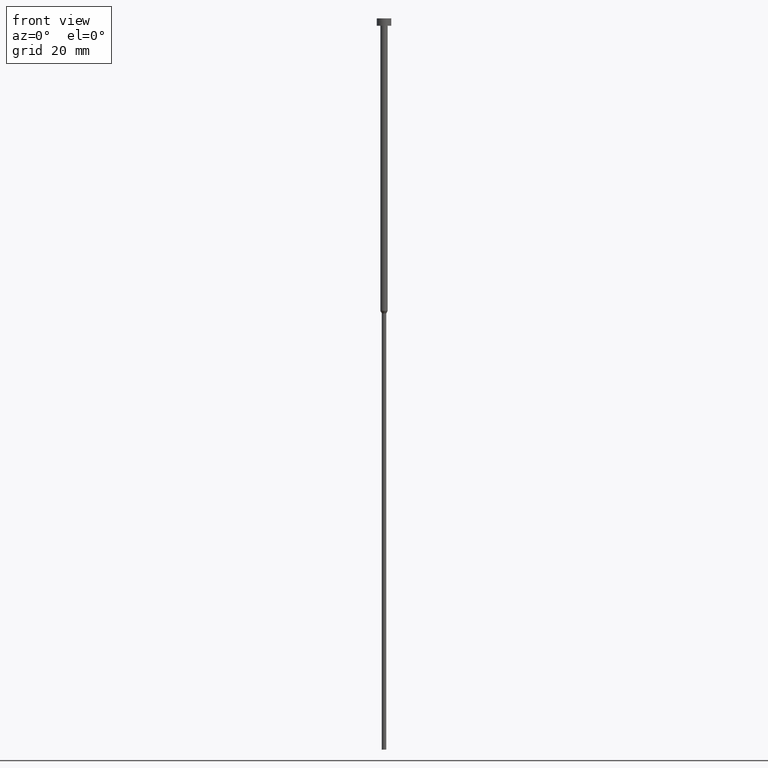
[diagram: clean part render]
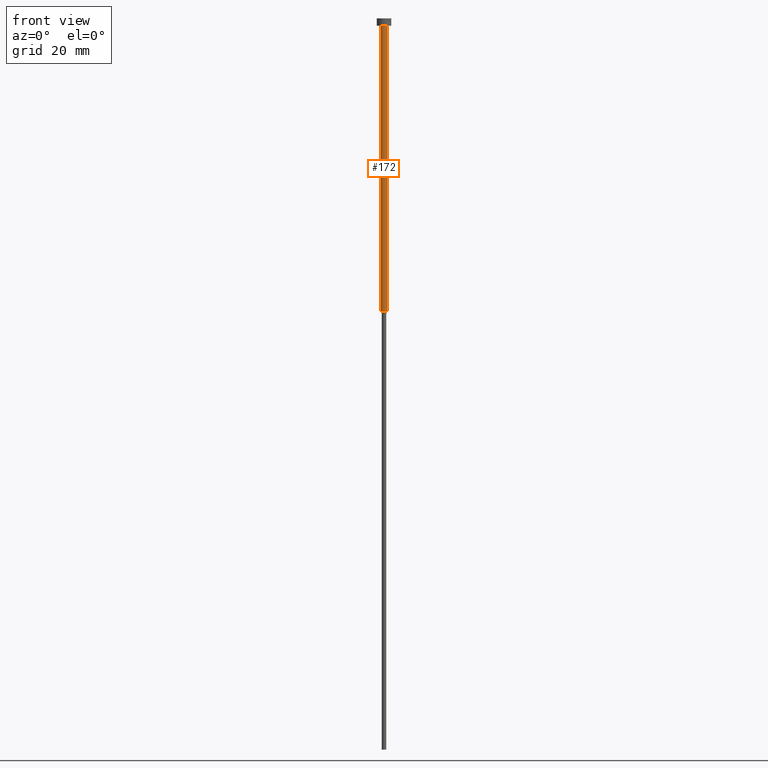
[diagram: same view with one face highlighted and labeled with its STEP entity id]
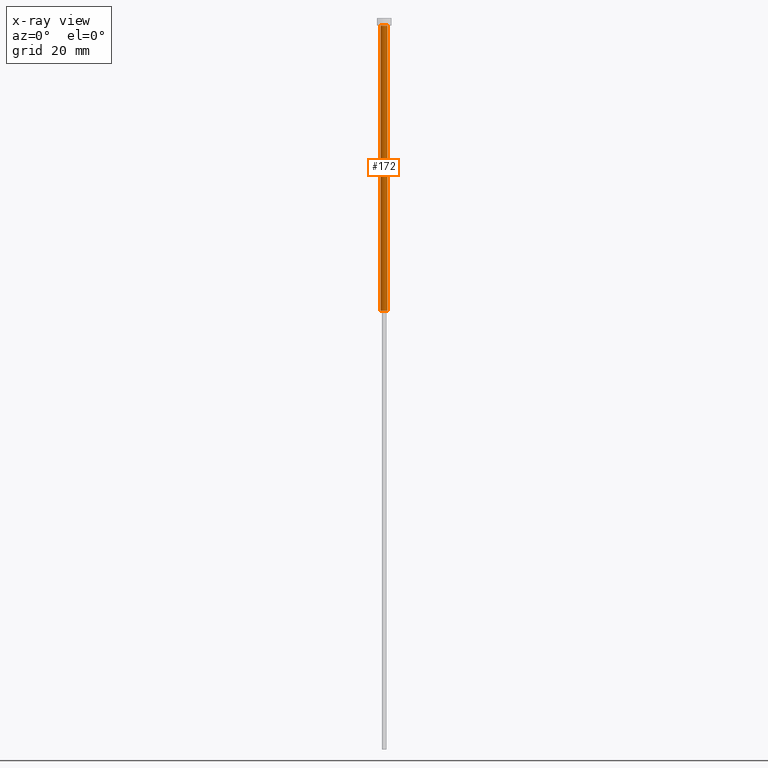
[diagram: x-ray of the same camera — body ghosted, the highlighted face saturated]
A machine part, front view. The second image highlights one B-rep face of the part: STEP entity #172.
The next image is the same camera in x-ray: the body ghosted, the highlighted face saturated — about 0% of this face is hidden behind the body in this view.
In plain terms, the highlighted cylindrical surface (edge-blend (fillet) strip) has radius 1 mm, axis along (-0, -0, 1).
Its self-contained STEP definition (entity closure, byte-faithful):
#6 = ORIENTED_EDGE ( 'NONE', *, *, #77, .T. ) ;
#10 = DIRECTION ( 'NONE',  ( -0.000000000000000000, -0.000000000000000000, 1.000000000000000000 ) ) ;
#20 = CARTESIAN_POINT ( 'NONE',  ( 1.000000000000003109, 0.000000000000000000, -80.00000000000000000 ) ) ;
#25 = DIRECTION ( 'NONE',  ( -0.000000000000000000, -0.000000000000000000, 1.000000000000000000 ) ) ;
#29 = CARTESIAN_POINT ( 'NONE',  ( 0.000000000000000000, 0.000000000000000000, -80.00000000000000000 ) ) ;
#30 = AXIS2_PLACEMENT_3D ( 'NONE', #29, #10, #227 ) ;
#43 = VERTEX_POINT ( 'NONE', #134 ) ;
#48 = DIRECTION ( 'NONE',  ( 1.000000000000000000, 0.000000000000000000, 0.000000000000000000 ) ) ;
#77 = EDGE_CURVE ( 'NONE', #205, #315, #166, .T. ) ;
#79 = FACE_OUTER_BOUND ( 'NONE', #148, .T. ) ;
#93 = CIRCLE ( 'NONE', #30, 1.000000000000003109 ) ;
#103 = CARTESIAN_POINT ( 'NONE',  ( 0.000000000000000000, 0.000000000000000000, -2.000000000000000444 ) ) ;
#105 = CARTESIAN_POINT ( 'NONE',  ( 1.000000000000003331, 0.000000000000000000, 0.000000000000000000 ) ) ;
#108 = EDGE_CURVE ( 'NONE', #43, #315, #219, .T. ) ;
#134 = CARTESIAN_POINT ( 'NONE',  ( -1.000000000000003553, 1.224646799147357398E-16, -2.000000000000000444 ) ) ;
#136 = DIRECTION ( 'NONE',  ( 1.000000000000000000, 0.000000000000000000, 0.000000000000000000 ) ) ;
#144 = CARTESIAN_POINT ( 'NONE',  ( 1.000000000000003553, 0.000000000000000000, -2.000000000000000444 ) ) ;
#148 = EDGE_LOOP ( 'NONE', ( #281, #263, #6, #339 ) ) ;
#156 = EDGE_CURVE ( 'NONE', #318, #43, #190, .T. ) ;
#163 = CARTESIAN_POINT ( 'NONE',  ( -1.000000000000003331, 1.224646799147357151E-16, 0.000000000000000000 ) ) ;
#165 = CYLINDRICAL_SURFACE ( 'NONE', #338, 1.000000000000003331 ) ;
#166 = LINE ( 'NONE', #105, #279 ) ;
#172 = ADVANCED_FACE ( 'NONE', ( #79 ), #165, .T. ) ;
#190 = LINE ( 'NONE', #163, #202 ) ;
#202 = VECTOR ( 'NONE', #291, 1000.000000000000000 ) ;
#205 = VERTEX_POINT ( 'NONE', #20 ) ;
#219 = CIRCLE ( 'NONE', #241, 1.000000000000003553 ) ;
#221 = EDGE_CURVE ( 'NONE', #318, #205, #93, .T. ) ;
#227 = DIRECTION ( 'NONE',  ( 1.000000000000000000, 0.000000000000000000, 0.000000000000000000 ) ) ;
#241 = AXIS2_PLACEMENT_3D ( 'NONE', #103, #323, #48 ) ;
#244 = DIRECTION ( 'NONE',  ( -0.000000000000000000, -0.000000000000000000, 1.000000000000000000 ) ) ;
#255 = CARTESIAN_POINT ( 'NONE',  ( -1.000000000000003109, 1.224646799147356905E-16, -80.00000000000000000 ) ) ;
#263 = ORIENTED_EDGE ( 'NONE', *, *, #221, .T. ) ;
#273 = CARTESIAN_POINT ( 'NONE',  ( 0.000000000000000000, 0.000000000000000000, 0.000000000000000000 ) ) ;
#279 = VECTOR ( 'NONE', #244, 1000.000000000000000 ) ;
#281 = ORIENTED_EDGE ( 'NONE', *, *, #156, .F. ) ;
#291 = DIRECTION ( 'NONE',  ( -0.000000000000000000, -0.000000000000000000, 1.000000000000000000 ) ) ;
#315 = VERTEX_POINT ( 'NONE', #144 ) ;
#318 = VERTEX_POINT ( 'NONE', #255 ) ;
#323 = DIRECTION ( 'NONE',  ( -0.000000000000000000, -0.000000000000000000, 1.000000000000000000 ) ) ;
#338 = AXIS2_PLACEMENT_3D ( 'NONE', #273, #25, #136 ) ;
#339 = ORIENTED_EDGE ( 'NONE', *, *, #108, .F. ) ;